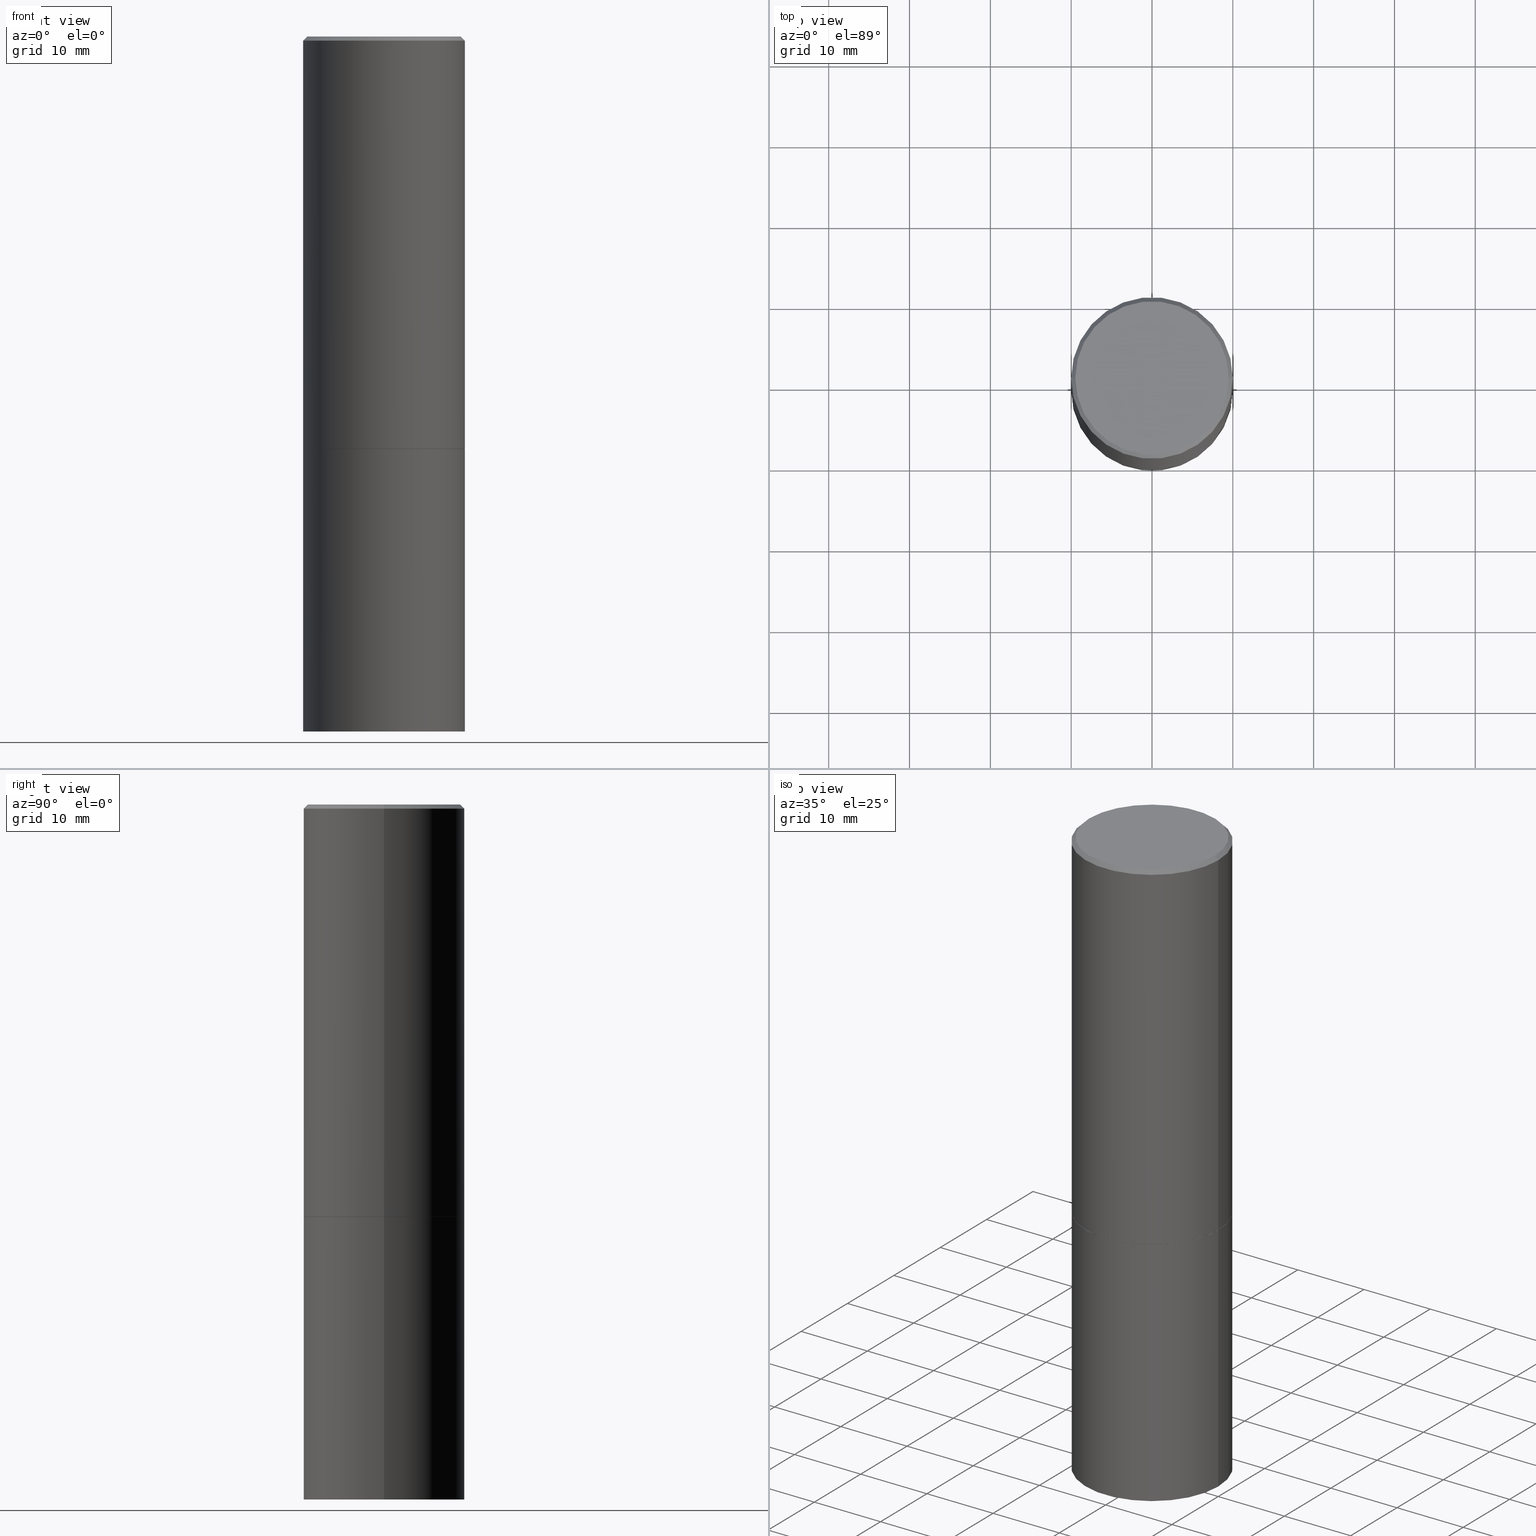
[diagram: canonical four-view strip — front | top / right | iso, engineering-drawing reading convention]
A machine part, canonical four-view strip (front | top / right | iso — engineering-drawing reading convention). The complete STEP part file that produces these views, byte-faithful:
ISO-10303-21;
HEADER;
FILE_DESCRIPTION (( 'STEP AP203' ),
    '1' );
FILE_NAME ('45005.STEP',
    '2024-02-28T08:35:44',
    ( '' ),
    ( '' ),
    'SwSTEP 2.0',
    'SolidWorks 2023',
    '' );
FILE_SCHEMA (( 'CONFIG_CONTROL_DESIGN' ));
ENDSEC;

DATA;
#1 = VERTEX_POINT ( 'NONE', #161 ) ;
#2 = EDGE_LOOP ( 'NONE', ( #29, #339, #289, #160 ) ) ;
#3 = CARTESIAN_POINT ( 'NONE',  ( 2.749192406205166047E-15, 0.3936999999999882260, -3.385800000000001919 ) ) ;
#4 = CARTESIAN_POINT ( 'NONE',  ( 0.000000000000000000, 0.000000000000000000, 0.000000000000000000 ) ) ;
#5 = DIRECTION ( 'NONE',  ( 1.000000000000000000, -6.982962677686265133E-15, 0.000000000000000000 ) ) ;
#6 = DIRECTION ( 'NONE',  ( -2.445468806185136597E-29, 3.491481338843145583E-15, 1.000000000000000000 ) ) ;
#7 = EDGE_CURVE ( 'NONE', #73, #211, #43, .T. ) ;
#8 = AXIS2_PLACEMENT_3D ( 'NONE', #120, #230, #228 ) ;
#9 = COORDINATED_UNIVERSAL_TIME_OFFSET ( 5, 0, .BEHIND. ) ;
#10 = EDGE_LOOP ( 'NONE', ( #183, #365 ) ) ;
#11 = CARTESIAN_POINT ( 'NONE',  ( -0.3926999999999999935, -4.219894908799355209E-15, -2.007800000000000473 ) ) ;
#12 = ORIENTED_EDGE ( 'NONE', *, *, #345, .F. ) ;
#13 = ADVANCED_FACE ( 'NONE', ( #114 ), #320, .T. ) ;
#14 = DIRECTION ( 'NONE',  ( 1.000000000000000000, -6.982962677686266711E-15, 0.000000000000000000 ) ) ;
#15 = LOCAL_TIME ( 3, 35, 44.00000000000000000, #342 ) ;
#16 = APPROVAL ( #355, 'UNSPECIFIED' ) ;
#17 = DIRECTION ( 'NONE',  ( 1.000000000000000000, -6.982962677686266711E-15, 4.876176775795935793E-29 ) ) ;
#18 = CARTESIAN_POINT ( 'NONE',  ( 0.3926999999999999935, -9.752405675656666190E-15, -2.007800000000000473 ) ) ;
#19 = AXIS2_PLACEMENT_3D ( 'NONE', #328, #103, #174 ) ;
#20 = CARTESIAN_POINT ( 'NONE',  ( -0.3937000000000000499, -6.618420123904681571E-15, -2.007800000000000473 ) ) ;
#21 = VECTOR ( 'NONE', #62, 39.37007874015748854 ) ;
#22 = ORIENTED_EDGE ( 'NONE', *, *, #335, .F. ) ;
#23 = EDGE_CURVE ( 'NONE', #138, #92, #357, .T. ) ;
#24 =( LENGTH_UNIT ( ) NAMED_UNIT ( * ) SI_UNIT ( $, .METRE. ) );
#25 = EDGE_LOOP ( 'NONE', ( #277, #337 ) ) ;
#26 = DIRECTION ( 'NONE',  ( 1.000000000000000000, -6.982962677686265133E-15, 0.000000000000000000 ) ) ;
#27 = AXIS2_PLACEMENT_3D ( 'NONE', #166, #110, #26 ) ;
#28 = MECHANICAL_CONTEXT ( 'NONE', #281, 'mechanical' ) ;
#29 = ORIENTED_EDGE ( 'NONE', *, *, #345, .T. ) ;
#30 = CARTESIAN_POINT ( 'NONE',  ( -0.3936999999999998279, 2.679362779428218735E-15, -0.02000000000000009062 ) ) ;
#31 = APPROVAL_STATUS ( 'not_yet_approved' ) ;
#32 = EDGE_CURVE ( 'NONE', #350, #87, #237, .T. ) ;
#33 = PERSON_AND_ORGANIZATION_ROLE ( 'design_owner' ) ;
#34 = VERTEX_POINT ( 'NONE', #227 ) ;
#35 = APPLICATION_CONTEXT ( 'configuration controlled 3d designs of mechanical parts and assemblies' ) ;
#36 = ORIENTED_EDGE ( 'NONE', *, *, #187, .F. ) ;
#37 = DIRECTION ( 'NONE',  ( -0.7071067811865472397, 2.468850131082253905E-15, -0.7071067811865477948 ) ) ;
#38 = EDGE_CURVE ( 'NONE', #198, #252, #231, .T. ) ;
#39 = CALENDAR_DATE ( 2024, 28, 2 ) ;
#40 = ORIENTED_EDGE ( 'NONE', *, *, #250, .F. ) ;
#41 = CARTESIAN_POINT ( 'NONE',  ( 4.910012269058518206E-29, -7.010196232129268988E-15, -2.007800000000000473 ) ) ;
#42 = DIRECTION ( 'NONE',  ( -2.445468806185136597E-29, 3.491481338843145583E-15, 1.000000000000000000 ) ) ;
#43 = CIRCLE ( 'NONE', #291, 0.3937000000000000499 ) ;
#44 = LOCAL_TIME ( 3, 35, 44.00000000000000000, #265 ) ;
#45 = FACE_OUTER_BOUND ( 'NONE', #95, .T. ) ;
#46 = DATE_AND_TIME ( #118, #261 ) ;
#47 = CARTESIAN_POINT ( 'NONE',  ( 0.3937000000000000499, -2.749192406205083217E-15, 1.919750796630860172E-29 ) ) ;
#48 = ORIENTED_EDGE ( 'NONE', *, *, #74, .T. ) ;
#49 = PERSON_AND_ORGANIZATION ( #63, #329 ) ;
#50 = VECTOR ( 'NONE', #194, 39.37007874015748143 ) ;
#51 = DIMENSIONAL_EXPONENTS ( 1.000000000000000000, 0.000000000000000000, 0.000000000000000000, 0.000000000000000000, 0.000000000000000000, 0.000000000000000000, 0.000000000000000000 ) ;
#52 =( CONVERSION_BASED_UNIT ( 'INCH', #296 ) LENGTH_UNIT ( ) NAMED_UNIT ( #51 ) );
#53 = DIRECTION ( 'NONE',  ( -2.445468806185136877E-29, 3.491481338843145188E-15, 1.000000000000000000 ) ) ;
#54 = CARTESIAN_POINT ( 'NONE',  ( -0.3937000000000001609, -7.408604380961272890E-16, -2.006800000000000139 ) ) ;
#55 = DIRECTION ( 'NONE',  ( 2.438088387897960049E-29, -3.491481338843145188E-15, -1.000000000000000000 ) ) ;
#56 = ORIENTED_EDGE ( 'NONE', *, *, #7, .F. ) ;
#57 = FACE_OUTER_BOUND ( 'NONE', #10, .T. ) ;
#58 = ORIENTED_EDGE ( 'NONE', *, *, #121, .T. ) ;
#59 = APPROVAL_PERSON_ORGANIZATION ( #279, #155, #311 ) ;
#60 = ADVANCED_FACE ( 'NONE', ( #352 ), #246, .T. ) ;
#61 = APPROVAL_ROLE ( '' ) ;
#62 = DIRECTION ( 'NONE',  ( -0.7071067811865474617, 7.493145998870352582E-15, 0.7071067811865474617 ) ) ;
#63 = PERSON ( 'UNSPECIFIED', 'UNSPECIFIED', 'UNSPECIFIED', ('UNSPECIFIED'), ('UNSPECIFIED'), ('UNSPECIFIED') ) ;
#64 = ORIENTED_EDGE ( 'NONE', *, *, #275, .T. ) ;
#65 = CARTESIAN_POINT ( 'NONE',  ( 4.907566800252332603E-29, -7.006704750790425192E-15, -2.006800000000000139 ) ) ;
#66 = AXIS2_PLACEMENT_3D ( 'NONE', #305, #208, #304 ) ;
#67 = AXIS2_PLACEMENT_3D ( 'NONE', #280, #216, #214 ) ;
#68 = DIRECTION ( 'NONE',  ( -2.445468806185136597E-29, 3.491481338843145583E-15, 1.000000000000000000 ) ) ;
#69 = CLOSED_SHELL ( 'NONE', ( #190, #13, #283, #148, #306, #60, #181, #141 ) ) ;
#70 = ADVANCED_FACE ( 'NONE', ( #312 ), #151, .T. ) ;
#71 = DIRECTION ( 'NONE',  ( 1.000000000000000000, -6.982962677686265922E-15, 4.876176775795935793E-29 ) ) ;
#72 = PERSON_AND_ORGANIZATION ( #63, #329 ) ;
#73 = VERTEX_POINT ( 'NONE', #125 ) ;
#74 = EDGE_CURVE ( 'NONE', #307, #92, #264, .T. ) ;
#75 = AXIS2_PLACEMENT_3D ( 'NONE', #298, #55, #127 ) ;
#76 = FACE_OUTER_BOUND ( 'NONE', #343, .T. ) ;
#77 = DATE_AND_TIME ( #123, #44 ) ;
#78 = FACE_OUTER_BOUND ( 'NONE', #180, .T. ) ;
#79 = CARTESIAN_POINT ( 'NONE',  ( 0.000000000000000000, 0.000000000000000000, 0.000000000000000000 ) ) ;
#80 = CARTESIAN_POINT ( 'NONE',  ( 0.3936999999999998279, -2.770807688499514156E-15, -0.02000000000000009062 ) ) ;
#81 = CC_DESIGN_DATE_AND_TIME_ASSIGNMENT ( #145, #192, ( #308 ) ) ;
#82 = VECTOR ( 'NONE', #361, 39.37007874015748854 ) ;
#83 = ORIENTED_EDGE ( 'NONE', *, *, #175, .F. ) ;
#84 = DESIGN_CONTEXT ( 'detailed design', #35, 'design' ) ;
#85 = PERSON_AND_ORGANIZATION ( #63, #329 ) ;
#86 = VERTEX_POINT ( 'NONE', #354 ) ;
#87 = VERTEX_POINT ( 'NONE', #240 ) ;
#88 = CALENDAR_DATE ( 2024, 28, 2 ) ;
#89 = DIRECTION ( 'NONE',  ( 2.438088387897960049E-29, -3.491481338843145188E-15, -1.000000000000000000 ) ) ;
#90 = CONICAL_SURFACE ( 'NONE', #302, 0.3926999999999999935, 0.7853981633974482790 ) ;
#91 = DATE_AND_TIME ( #254, #15 ) ;
#92 = VERTEX_POINT ( 'NONE', #80 ) ;
#93 = DIRECTION ( 'NONE',  ( 1.000000000000000000, 0.000000000000000000, 0.000000000000000000 ) ) ;
#94 = LINE ( 'NONE', #11, #21 ) ;
#95 = EDGE_LOOP ( 'NONE', ( #64, #143, #56, #156 ) ) ;
#96 = CARTESIAN_POINT ( 'NONE',  ( 4.890937612370295054E-31, -6.982962677686322424E-17, -0.02000000000000009062 ) ) ;
#97 = AXIS2_PLACEMENT_3D ( 'NONE', #98, #288, #17 ) ;
#98 = CARTESIAN_POINT ( 'NONE',  ( 0.000000000000000000, 0.000000000000000000, 0.000000000000000000 ) ) ;
#99 = CARTESIAN_POINT ( 'NONE',  ( 0.3926999999999999935, -9.752405675656666190E-15, -2.007800000000000473 ) ) ;
#100 = PERSON_AND_ORGANIZATION ( #63, #329 ) ;
#101 = CARTESIAN_POINT ( 'NONE',  ( 4.910012269058518206E-29, -7.010196232129268988E-15, -2.007800000000000473 ) ) ;
#102 = CC_DESIGN_APPROVAL ( #155, ( #203 ) ) ;
#103 = DIRECTION ( 'NONE',  ( 2.438088387897960049E-29, -3.491481338843145188E-15, -1.000000000000000000 ) ) ;
#104 = ORIENTED_EDGE ( 'NONE', *, *, #359, .T. ) ;
#105 = CC_DESIGN_PERSON_AND_ORGANIZATION_ASSIGNMENT ( #100, #315, ( #203 ) ) ;
#106 = EDGE_LOOP ( 'NONE', ( #36, #272, #104, #244 ) ) ;
#107 = CIRCLE ( 'NONE', #27, 0.3937000000000000499 ) ;
#108 = DIRECTION ( 'NONE',  ( 1.000000000000000000, -6.982962677686268288E-15, 0.000000000000000000 ) ) ;
#109 = PERSON_AND_ORGANIZATION_ROLE ( 'creator' ) ;
#110 = DIRECTION ( 'NONE',  ( -2.445468806185136597E-29, 3.491481338843145583E-15, 1.000000000000000000 ) ) ;
#111 = DIRECTION ( 'NONE',  ( 0.000000000000000000, 0.000000000000000000, 1.000000000000000000 ) ) ;
#112 = CARTESIAN_POINT ( 'NONE',  ( 4.890937612370295054E-31, -6.982962677686322424E-17, -0.02000000000000009062 ) ) ;
#113 = DIRECTION ( 'NONE',  ( -1.000000000000000000, 6.982962677686266711E-15, 0.000000000000000000 ) ) ;
#114 = FACE_OUTER_BOUND ( 'NONE', #2, .T. ) ;
#115 = PERSON_AND_ORGANIZATION_ROLE ( 'creator' ) ;
#116 = ORIENTED_EDGE ( 'NONE', *, *, #235, .F. ) ;
#117 = AXIS2_PLACEMENT_3D ( 'NONE', #4, #111, #93 ) ;
#118 = CALENDAR_DATE ( 2024, 28, 2 ) ;
#119 = EDGE_CURVE ( 'NONE', #350, #252, #178, .T. ) ;
#120 = CARTESIAN_POINT ( 'NONE',  ( 3.131554243005659264E-46, -4.471029511141341874E-32, -1.280553747030123384E-17 ) ) ;
#121 = EDGE_CURVE ( 'NONE', #252, #92, #330, .T. ) ;
#122 = CARTESIAN_POINT ( 'NONE',  ( 0.3936999999999999389, -2.749192406205082822E-15, 1.919750796630859611E-29 ) ) ;
#123 = CALENDAR_DATE ( 2024, 28, 2 ) ;
#124 = ADVANCED_BREP_SHAPE_REPRESENTATION ( '45005', ( #128, #256, #117 ), #247 ) ;
#125 = CARTESIAN_POINT ( 'NONE',  ( 0.3937000000000000499, -9.759388638334352204E-15, -2.007800000000000473 ) ) ;
#126 = ADVANCED_FACE ( 'NONE', ( #76 ), #177, .F. ) ;
#127 = DIRECTION ( 'NONE',  ( -1.000000000000000000, 6.982962677686265922E-15, -4.876176775795935793E-29 ) ) ;
#128 = MANIFOLD_SOLID_BREP ( 'Body-Move/Copy2[1]', #201 ) ;
#129 = CARTESIAN_POINT ( 'NONE',  ( 4.910012269058518206E-29, -7.010196232129268988E-15, -2.007800000000000473 ) ) ;
#130 = ORIENTED_EDGE ( 'NONE', *, *, #38, .T. ) ;
#131 = CARTESIAN_POINT ( 'NONE',  ( 4.910012269058518206E-29, -7.010196232129268988E-15, -2.007800000000000473 ) ) ;
#132 = APPLICATION_PROTOCOL_DEFINITION ( 'international standard', 'config_control_design', 1994, #281 ) ;
#133 = AXIS2_PLACEMENT_3D ( 'NONE', #112, #68, #167 ) ;
#134 = ORIENTED_EDGE ( 'NONE', *, *, #257, .T. ) ;
#135 = PLANE ( 'NONE',  #324 ) ;
#136 = ORIENTED_EDGE ( 'NONE', *, *, #7, .T. ) ;
#137 = DATE_AND_TIME ( #88, #334 ) ;
#138 = VERTEX_POINT ( 'NONE', #358 ) ;
#139 = EDGE_LOOP ( 'NONE', ( #163, #130, #58, #309 ) ) ;
#140 = CIRCLE ( 'NONE', #67, 0.3936999999999998279 ) ;
#141 = ADVANCED_FACE ( 'NONE', ( #57 ), #362, .F. ) ;
#142 = PERSON_AND_ORGANIZATION ( #63, #329 ) ;
#143 = ORIENTED_EDGE ( 'NONE', *, *, #187, .T. ) ;
#144 = DIRECTION ( 'NONE',  ( 1.000000000000000000, -6.982962677686267499E-15, 0.000000000000000000 ) ) ;
#145 = DATE_AND_TIME ( #39, #147 ) ;
#146 = DIRECTION ( 'NONE',  ( 1.000000000000000000, -6.982962677686268288E-15, 0.000000000000000000 ) ) ;
#147 = LOCAL_TIME ( 3, 35, 44.00000000000000000, #319 ) ;
#148 = ADVANCED_FACE ( 'NONE', ( #153 ), #268, .T. ) ;
#149 = PERSON_AND_ORGANIZATION ( #63, #329 ) ;
#150 = CONICAL_SURFACE ( 'NONE', #263, 0.3936999999999998279, 0.7853981633974479459 ) ;
#151 = CYLINDRICAL_SURFACE ( 'NONE', #349, 0.3937000000000000499 ) ;
#152 = ORIENTED_EDGE ( 'NONE', *, *, #119, .F. ) ;
#153 = FACE_OUTER_BOUND ( 'NONE', #213, .T. ) ;
#154 = EDGE_LOOP ( 'NONE', ( #285, #83 ) ) ;
#155 = APPROVAL ( #31, 'UNSPECIFIED' ) ;
#156 = ORIENTED_EDGE ( 'NONE', *, *, #359, .F. ) ;
#157 = APPROVAL_PERSON_ORGANIZATION ( #85, #293, #61 ) ;
#158 = CARTESIAN_POINT ( 'NONE',  ( 0.3937000000000001054, -9.755897156995509197E-15, -2.006800000000000139 ) ) ;
#159 = PERSON_AND_ORGANIZATION ( #63, #329 ) ;
#160 = ORIENTED_EDGE ( 'NONE', *, *, #121, .F. ) ;
#161 = CARTESIAN_POINT ( 'NONE',  ( 0.3937000000000000499, -1.457064992326020852E-14, -3.385800000000000143 ) ) ;
#162 = CC_DESIGN_PERSON_AND_ORGANIZATION_ASSIGNMENT ( #149, #115, ( #203 ) ) ;
#163 = ORIENTED_EDGE ( 'NONE', *, *, #207, .F. ) ;
#164 = CIRCLE ( 'NONE', #262, 0.3926999999999999935 ) ;
#165 = AXIS2_PLACEMENT_3D ( 'NONE', #224, #258, #168 ) ;
#166 = CARTESIAN_POINT ( 'NONE',  ( 4.910012269058518206E-29, -7.010196232129268988E-15, -2.007800000000000473 ) ) ;
#167 = DIRECTION ( 'NONE',  ( 1.000000000000000000, -6.982962677686266711E-15, 0.000000000000000000 ) ) ;
#168 = DIRECTION ( 'NONE',  ( 1.000000000000000000, -6.982962677686266711E-15, 4.876212485538978481E-29 ) ) ;
#169 = VECTOR ( 'NONE', #202, 39.37007874015748143 ) ;
#170 = LINE ( 'NONE', #47, #50 ) ;
#171 = DIRECTION ( 'NONE',  ( -2.445468806185136597E-29, 3.491481338843145583E-15, 1.000000000000000000 ) ) ;
#172 = DIRECTION ( 'NONE',  ( 1.000000000000000000, -6.982962677686268288E-15, 0.000000000000000000 ) ) ;
#173 = VECTOR ( 'NONE', #37, 39.37007874015748143 ) ;
#174 = DIRECTION ( 'NONE',  ( -1.000000000000000000, 6.982962677686265922E-15, -4.876176775795935793E-29 ) ) ;
#175 = EDGE_CURVE ( 'NONE', #87, #350, #164, .T. ) ;
#176 = DIRECTION ( 'NONE',  ( 1.000000000000000000, -6.982962677686268288E-15, 0.000000000000000000 ) ) ;
#177 = PLANE ( 'NONE',  #75 ) ;
#178 = LINE ( 'NONE', #18, #82 ) ;
#179 = CIRCLE ( 'NONE', #186, 0.3937000000000000499 ) ;
#180 = EDGE_LOOP ( 'NONE', ( #184, #269, #12, #152 ) ) ;
#181 = ADVANCED_FACE ( 'NONE', ( #333 ), #212, .F. ) ;
#182 = CARTESIAN_POINT ( 'NONE',  ( -0.3937000000000000499, 2.797406750687514786E-15, -1.936584745033356735E-29 ) ) ;
#183 = ORIENTED_EDGE ( 'NONE', *, *, #335, .T. ) ;
#184 = ORIENTED_EDGE ( 'NONE', *, *, #32, .T. ) ;
#185 = DATE_TIME_ROLE ( 'creation_date' ) ;
#186 = AXIS2_PLACEMENT_3D ( 'NONE', #220, #6, #346 ) ;
#187 = EDGE_CURVE ( 'NONE', #86, #211, #297, .T. ) ;
#188 = ORIENTED_EDGE ( 'NONE', *, *, #322, .F. ) ;
#189 = CARTESIAN_POINT ( 'NONE',  ( 4.910012269058518206E-29, -7.010196232129268988E-15, -2.007800000000000473 ) ) ;
#190 = ADVANCED_FACE ( 'NONE', ( #78 ), #90, .T. ) ;
#191 = AXIS2_PLACEMENT_3D ( 'NONE', #325, #42, #71 ) ;
#192 = DATE_TIME_ROLE ( 'classification_date' ) ;
#193 = DIRECTION ( 'NONE',  ( -2.445468806185136597E-29, 3.491481338843145583E-15, 1.000000000000000000 ) ) ;
#194 = DIRECTION ( 'NONE',  ( -2.445468806185136877E-29, 3.491481338843145188E-15, 1.000000000000000000 ) ) ;
#195 = CYLINDRICAL_SURFACE ( 'NONE', #191, 0.3937000000000000499 ) ;
#196 = VECTOR ( 'NONE', #331, 39.37007874015748143 ) ;
#197 = SECURITY_CLASSIFICATION_LEVEL ( 'unclassified' ) ;
#198 = VERTEX_POINT ( 'NONE', #54 ) ;
#199 = UNCERTAINTY_MEASURE_WITH_UNIT (LENGTH_MEASURE( 1.000000000000000082E-05 ), #52, 'distance_accuracy_value', 'NONE');
#200 = APPROVAL_ROLE ( '' ) ;
#201 = CLOSED_SHELL ( 'NONE', ( #351, #299, #126, #70 ) ) ;
#202 = DIRECTION ( 'NONE',  ( 0.7071067811865472397, -7.319954787623254468E-15, -0.7071067811865477948 ) ) ;
#203 = PRODUCT_DEFINITION_FORMATION_WITH_SPECIFIED_SOURCE ( 'ANY', '', #253, .NOT_KNOWN. ) ;
#204 = DIRECTION ( 'NONE',  ( -2.438088387897960049E-29, 3.491481338843145188E-15, 1.000000000000000000 ) ) ;
#205 = DIRECTION ( 'NONE',  ( -2.445468806185136877E-29, 3.491481338843145188E-15, 1.000000000000000000 ) ) ;
#206 = ORIENTED_EDGE ( 'NONE', *, *, #175, .T. ) ;
#207 = EDGE_CURVE ( 'NONE', #198, #138, #336, .T. ) ;
#208 = DIRECTION ( 'NONE',  ( 2.445468806185136597E-29, -3.491481338843145583E-15, -1.000000000000000000 ) ) ;
#209 = AXIS2_PLACEMENT_3D ( 'NONE', #101, #326, #172 ) ;
#210 = AXIS2_PLACEMENT_3D ( 'NONE', #129, #204, #242 ) ;
#211 = VERTEX_POINT ( 'NONE', #20 ) ;
#212 = PLANE ( 'NONE',  #210 ) ;
#213 = EDGE_LOOP ( 'NONE', ( #303, #22, #241, #347 ) ) ;
#214 = DIRECTION ( 'NONE',  ( 1.000000000000000000, -6.982962677686266711E-15, 0.000000000000000000 ) ) ;
#215 = APPLICATION_PROTOCOL_DEFINITION ( 'international standard', 'config_control_design', 1994, #35 ) ;
#216 = DIRECTION ( 'NONE',  ( -2.445468806185136597E-29, 3.491481338843145583E-15, 1.000000000000000000 ) ) ;
#217 = DIRECTION ( 'NONE',  ( 1.000000000000000000, -6.982962677686266711E-15, 0.000000000000000000 ) ) ;
#218 = FACE_OUTER_BOUND ( 'NONE', #139, .T. ) ;
#219 = CARTESIAN_POINT ( 'NONE',  ( 0.000000000000000000, 0.000000000000000000, 0.000000000000000000 ) ) ;
#220 = CARTESIAN_POINT ( 'NONE',  ( 8.279868283981636714E-29, -1.182145751705512373E-14, -3.385800000000000143 ) ) ;
#221 = CC_DESIGN_PERSON_AND_ORGANIZATION_ASSIGNMENT ( #159, #109, ( #364 ) ) ;
#222 = ORIENTED_EDGE ( 'NONE', *, *, #290, .T. ) ;
#223 = VECTOR ( 'NONE', #205, 39.37007874015748143 ) ;
#224 = CARTESIAN_POINT ( 'NONE',  ( 3.131554243005659264E-46, -4.471029511141341874E-32, -1.280553747030123384E-17 ) ) ;
#225 = VECTOR ( 'NONE', #53, 39.37007874015748143 ) ;
#226 = APPROVAL_DATE_TIME ( #46, #155 ) ;
#227 = CARTESIAN_POINT ( 'NONE',  ( -0.3736999999999997546, 2.644447966039787480E-15, -1.280553747031960567E-17 ) ) ;
#228 = DIRECTION ( 'NONE',  ( 1.000000000000000000, -6.982962677686266711E-15, 4.876212485538978481E-29 ) ) ;
#229 = CC_DESIGN_DATE_AND_TIME_ASSIGNMENT ( #137, #185, ( #364 ) ) ;
#230 = DIRECTION ( 'NONE',  ( -2.445468806185136597E-29, 3.491481338843145583E-15, 1.000000000000000000 ) ) ;
#231 = CIRCLE ( 'NONE', #260, 0.3937000000000001054 ) ;
#232 = CIRCLE ( 'NONE', #8, 0.3736999999999997546 ) ;
#233 = DIRECTION ( 'NONE',  ( 1.000000000000000000, -6.982962677686265922E-15, 4.876176775795935793E-29 ) ) ;
#234 = SHAPE_DEFINITION_REPRESENTATION ( #274, #124 ) ;
#235 = EDGE_CURVE ( 'NONE', #34, #138, #239, .T. ) ;
#236 = CARTESIAN_POINT ( 'NONE',  ( -0.3936999999999999389, 2.797406750687513998E-15, -1.936584745033356455E-29 ) ) ;
#237 = CIRCLE ( 'NONE', #341, 0.3926999999999999935 ) ;
#238 = CC_DESIGN_APPROVAL ( #293, ( #364 ) ) ;
#239 = LINE ( 'NONE', #30, #173 ) ;
#240 = CARTESIAN_POINT ( 'NONE',  ( -0.3926999999999999935, -4.214596454451132807E-15, -2.007800000000000473 ) ) ;
#241 = ORIENTED_EDGE ( 'NONE', *, *, #235, .T. ) ;
#242 = DIRECTION ( 'NONE',  ( 1.000000000000000000, -6.982962677686265922E-15, 4.876176775795935793E-29 ) ) ;
#243 = EDGE_CURVE ( 'NONE', #86, #1, #179, .T. ) ;
#244 = ORIENTED_EDGE ( 'NONE', *, *, #290, .F. ) ;
#245 = CARTESIAN_POINT ( 'NONE',  ( 4.910012269058518206E-29, -7.010196232129268988E-15, -2.007800000000000473 ) ) ;
#246 = CONICAL_SURFACE ( 'NONE', #209, 0.3926999999999999935, 0.7853981633974482790 ) ;
#247 =( GEOMETRIC_REPRESENTATION_CONTEXT ( 3 ) GLOBAL_UNCERTAINTY_ASSIGNED_CONTEXT ( ( #199 ) ) GLOBAL_UNIT_ASSIGNED_CONTEXT ( ( #52, #266, #356 ) ) REPRESENTATION_CONTEXT ( 'NONE', 'WORKASPACE' ) );
#248 = APPROVAL_DATE_TIME ( #91, #293 ) ;
#249 = APPROVAL_STATUS ( 'not_yet_approved' ) ;
#250 = EDGE_CURVE ( 'NONE', #87, #198, #94, .T. ) ;
#251 = FACE_OUTER_BOUND ( 'NONE', #273, .T. ) ;
#252 = VERTEX_POINT ( 'NONE', #158 ) ;
#253 = PRODUCT ( '45005', '45005', '', ( #28 ) ) ;
#254 = CALENDAR_DATE ( 2024, 28, 2 ) ;
#255 = CC_DESIGN_APPROVAL ( #16, ( #308 ) ) ;
#256 = MANIFOLD_SOLID_BREP ( 'Body-Move/Copy2[2]', #69 ) ;
#257 = EDGE_CURVE ( 'NONE', #92, #138, #140, .T. ) ;
#258 = DIRECTION ( 'NONE',  ( -2.445468806185136597E-29, 3.491481338843145583E-15, 1.000000000000000000 ) ) ;
#259 = DIRECTION ( 'NONE',  ( -2.445468806185136597E-29, 3.491481338843145583E-15, 1.000000000000000000 ) ) ;
#260 = AXIS2_PLACEMENT_3D ( 'NONE', #65, #259, #217 ) ;
#261 = LOCAL_TIME ( 3, 35, 44.00000000000000000, #9 ) ;
#262 = AXIS2_PLACEMENT_3D ( 'NONE', #131, #267, #108 ) ;
#263 = AXIS2_PLACEMENT_3D ( 'NONE', #96, #340, #113 ) ;
#264 = LINE ( 'NONE', #295, #169 ) ;
#265 = COORDINATED_UNIVERSAL_TIME_OFFSET ( 5, 0, .BEHIND. ) ;
#266 =( NAMED_UNIT ( * ) PLANE_ANGLE_UNIT ( ) SI_UNIT ( $, .RADIAN. ) );
#267 = DIRECTION ( 'NONE',  ( -2.445468806185136597E-29, 3.491481338843145583E-15, 1.000000000000000000 ) ) ;
#268 = CONICAL_SURFACE ( 'NONE', #66, 0.3936999999999998279, 0.7853981633974479459 ) ;
#269 = ORIENTED_EDGE ( 'NONE', *, *, #250, .T. ) ;
#270 = CC_DESIGN_PERSON_AND_ORGANIZATION_ASSIGNMENT ( #72, #286, ( #308 ) ) ;
#271 = DIRECTION ( 'NONE',  ( -2.445468806185136597E-29, 3.491481338843145583E-15, 1.000000000000000000 ) ) ;
#272 = ORIENTED_EDGE ( 'NONE', *, *, #243, .T. ) ;
#273 = EDGE_LOOP ( 'NONE', ( #188, #48, #134, #116 ) ) ;
#274 = PRODUCT_DEFINITION_SHAPE ( 'NONE', 'NONE',  #364 ) ;
#275 = EDGE_CURVE ( 'NONE', #1, #86, #284, .T. ) ;
#276 = AXIS2_PLACEMENT_3D ( 'NONE', #348, #318, #144 ) ;
#277 = ORIENTED_EDGE ( 'NONE', *, *, #275, .F. ) ;
#278 = FACE_OUTER_BOUND ( 'NONE', #25, .T. ) ;
#279 = PERSON_AND_ORGANIZATION ( #63, #329 ) ;
#280 = CARTESIAN_POINT ( 'NONE',  ( 4.890937612370295054E-31, -6.982962677686322424E-17, -0.02000000000000009062 ) ) ;
#281 = APPLICATION_CONTEXT ( 'configuration controlled 3d designs of mechanical parts and assemblies' ) ;
#282 = DIRECTION ( 'NONE',  ( -2.445468806185136597E-29, 3.491481338843145583E-15, 1.000000000000000000 ) ) ;
#283 = ADVANCED_FACE ( 'NONE', ( #251 ), #150, .T. ) ;
#284 = CIRCLE ( 'NONE', #276, 0.3937000000000000499 ) ;
#285 = ORIENTED_EDGE ( 'NONE', *, *, #32, .F. ) ;
#286 = PERSON_AND_ORGANIZATION_ROLE ( 'classification_officer' ) ;
#287 = ORIENTED_EDGE ( 'NONE', *, *, #119, .T. ) ;
#288 = DIRECTION ( 'NONE',  ( -2.445468806185136597E-29, 3.491481338843145583E-15, 1.000000000000000000 ) ) ;
#289 = ORIENTED_EDGE ( 'NONE', *, *, #257, .F. ) ;
#290 = EDGE_CURVE ( 'NONE', #211, #73, #107, .T. ) ;
#291 = AXIS2_PLACEMENT_3D ( 'NONE', #189, #193, #5 ) ;
#292 = CC_DESIGN_SECURITY_CLASSIFICATION ( #308, ( #203 ) ) ;
#293 = APPROVAL ( #249, 'UNSPECIFIED' ) ;
#294 = AXIS2_PLACEMENT_3D ( 'NONE', #321, #171, #14 ) ;
#295 = CARTESIAN_POINT ( 'NONE',  ( 0.3936999999999998279, -2.770807688499514156E-15, -0.02000000000000009062 ) ) ;
#296 = LENGTH_MEASURE_WITH_UNIT ( LENGTH_MEASURE( 0.02539999999999999897 ), #24 );
#297 = LINE ( 'NONE', #182, #196 ) ;
#298 = CARTESIAN_POINT ( 'NONE',  ( 2.749192406205132126E-15, 0.3936999999999930000, -2.007800000000001805 ) ) ;
#299 = ADVANCED_FACE ( 'NONE', ( #278 ), #135, .T. ) ;
#300 = EDGE_LOOP ( 'NONE', ( #40, #206, #287, #363 ) ) ;
#301 = AXIS2_PLACEMENT_3D ( 'NONE', #219, #282, #317 ) ;
#302 = AXIS2_PLACEMENT_3D ( 'NONE', #245, #366, #176 ) ;
#303 = ORIENTED_EDGE ( 'NONE', *, *, #74, .F. ) ;
#304 = DIRECTION ( 'NONE',  ( -1.000000000000000000, 6.982962677686266711E-15, 0.000000000000000000 ) ) ;
#305 = CARTESIAN_POINT ( 'NONE',  ( 4.890937612370295054E-31, -6.982962677686322424E-17, -0.02000000000000009062 ) ) ;
#306 = ADVANCED_FACE ( 'NONE', ( #218 ), #344, .T. ) ;
#307 = VERTEX_POINT ( 'NONE', #323 ) ;
#308 = SECURITY_CLASSIFICATION ( '', '', #197 ) ;
#309 = ORIENTED_EDGE ( 'NONE', *, *, #23, .F. ) ;
#310 = DIRECTION ( 'NONE',  ( -1.000000000000000000, 6.982962677686265922E-15, -4.876176775795935793E-29 ) ) ;
#311 = APPROVAL_ROLE ( '' ) ;
#312 = FACE_OUTER_BOUND ( 'NONE', #106, .T. ) ;
#313 = DIRECTION ( 'NONE',  ( -2.445468806185136597E-29, 3.491481338843145583E-15, 1.000000000000000000 ) ) ;
#314 = PRODUCT_RELATED_PRODUCT_CATEGORY ( 'detail', '', ( #253 ) ) ;
#315 = PERSON_AND_ORGANIZATION_ROLE ( 'design_supplier' ) ;
#316 = CIRCLE ( 'NONE', #294, 0.3937000000000001054 ) ;
#317 = DIRECTION ( 'NONE',  ( 1.000000000000000000, -6.982962677686266711E-15, 4.876176775795935793E-29 ) ) ;
#318 = DIRECTION ( 'NONE',  ( -2.445468806185136597E-29, 3.491481338843145583E-15, 1.000000000000000000 ) ) ;
#319 = COORDINATED_UNIVERSAL_TIME_OFFSET ( 5, 0, .BEHIND. ) ;
#320 = CYLINDRICAL_SURFACE ( 'NONE', #301, 0.3936999999999999389 ) ;
#321 = CARTESIAN_POINT ( 'NONE',  ( 4.907566800252332603E-29, -7.006704750790425192E-15, -2.006800000000000139 ) ) ;
#322 = EDGE_CURVE ( 'NONE', #307, #34, #232, .T. ) ;
#323 = CARTESIAN_POINT ( 'NONE',  ( 0.3736999999999997546, -2.667287895133366781E-15, -1.280553747028278189E-17 ) ) ;
#324 = AXIS2_PLACEMENT_3D ( 'NONE', #3, #89, #310 ) ;
#325 = CARTESIAN_POINT ( 'NONE',  ( 0.000000000000000000, 0.000000000000000000, 0.000000000000000000 ) ) ;
#326 = DIRECTION ( 'NONE',  ( -2.445468806185136597E-29, 3.491481338843145583E-15, 1.000000000000000000 ) ) ;
#327 = APPROVAL_DATE_TIME ( #77, #16 ) ;
#328 = CARTESIAN_POINT ( 'NONE',  ( 2.609533152651355831E-15, 0.3736999999999997546, -1.311169345060833289E-15 ) ) ;
#329 = ORGANIZATION ( 'UNSPECIFIED', 'UNSPECIFIED', '' ) ;
#330 = LINE ( 'NONE', #122, #223 ) ;
#331 = DIRECTION ( 'NONE',  ( -2.445468806185136877E-29, 3.491481338843145188E-15, 1.000000000000000000 ) ) ;
#332 = CC_DESIGN_PERSON_AND_ORGANIZATION_ASSIGNMENT ( #142, #33, ( #253 ) ) ;
#333 = FACE_OUTER_BOUND ( 'NONE', #154, .T. ) ;
#334 = LOCAL_TIME ( 3, 35, 44.00000000000000000, #338 ) ;
#335 = EDGE_CURVE ( 'NONE', #34, #307, #353, .T. ) ;
#336 = LINE ( 'NONE', #236, #225 ) ;
#337 = ORIENTED_EDGE ( 'NONE', *, *, #243, .F. ) ;
#338 = COORDINATED_UNIVERSAL_TIME_OFFSET ( 5, 0, .BEHIND. ) ;
#339 = ORIENTED_EDGE ( 'NONE', *, *, #207, .T. ) ;
#340 = DIRECTION ( 'NONE',  ( 2.445468806185136597E-29, -3.491481338843145583E-15, -1.000000000000000000 ) ) ;
#341 = AXIS2_PLACEMENT_3D ( 'NONE', #41, #313, #146 ) ;
#342 = COORDINATED_UNIVERSAL_TIME_OFFSET ( 5, 0, .BEHIND. ) ;
#343 = EDGE_LOOP ( 'NONE', ( #136, #222 ) ) ;
#344 = CYLINDRICAL_SURFACE ( 'NONE', #97, 0.3936999999999999389 ) ;
#345 = EDGE_CURVE ( 'NONE', #252, #198, #316, .T. ) ;
#346 = DIRECTION ( 'NONE',  ( 1.000000000000000000, -6.982962677686267499E-15, 0.000000000000000000 ) ) ;
#347 = ORIENTED_EDGE ( 'NONE', *, *, #23, .T. ) ;
#348 = CARTESIAN_POINT ( 'NONE',  ( 8.279868283981636714E-29, -1.182145751705512373E-14, -3.385800000000000143 ) ) ;
#349 = AXIS2_PLACEMENT_3D ( 'NONE', #79, #271, #233 ) ;
#350 = VERTEX_POINT ( 'NONE', #99 ) ;
#351 = ADVANCED_FACE ( 'NONE', ( #45 ), #195, .T. ) ;
#352 = FACE_OUTER_BOUND ( 'NONE', #300, .T. ) ;
#353 = CIRCLE ( 'NONE', #165, 0.3736999999999997546 ) ;
#354 = CARTESIAN_POINT ( 'NONE',  ( -0.3937000000000000499, -6.618420123904681571E-15, -3.385800000000000143 ) ) ;
#355 = APPROVAL_STATUS ( 'not_yet_approved' ) ;
#356 =( NAMED_UNIT ( * ) SI_UNIT ( $, .STERADIAN. ) SOLID_ANGLE_UNIT ( ) );
#357 = CIRCLE ( 'NONE', #133, 0.3936999999999998279 ) ;
#358 = CARTESIAN_POINT ( 'NONE',  ( -0.3936999999999998279, 2.679362779428218735E-15, -0.02000000000000009062 ) ) ;
#359 = EDGE_CURVE ( 'NONE', #1, #73, #170, .T. ) ;
#360 = APPROVAL_PERSON_ORGANIZATION ( #49, #16, #200 ) ;
#361 = DIRECTION ( 'NONE',  ( 0.7071067811865474617, -2.468850131082256666E-15, 0.7071067811865474617 ) ) ;
#362 = PLANE ( 'NONE',  #19 ) ;
#363 = ORIENTED_EDGE ( 'NONE', *, *, #38, .F. ) ;
#364 = PRODUCT_DEFINITION ( 'UNKNOWN', '', #203, #84 ) ;
#365 = ORIENTED_EDGE ( 'NONE', *, *, #322, .T. ) ;
#366 = DIRECTION ( 'NONE',  ( -2.445468806185136597E-29, 3.491481338843145583E-15, 1.000000000000000000 ) ) ;
ENDSEC;
END-ISO-10303-21;
